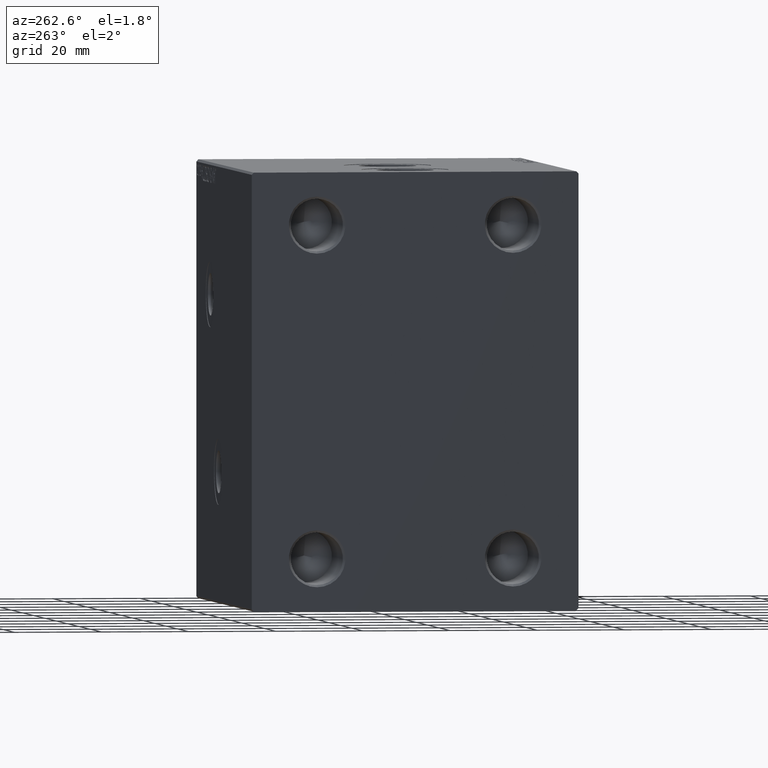
[diagram: clean part render]
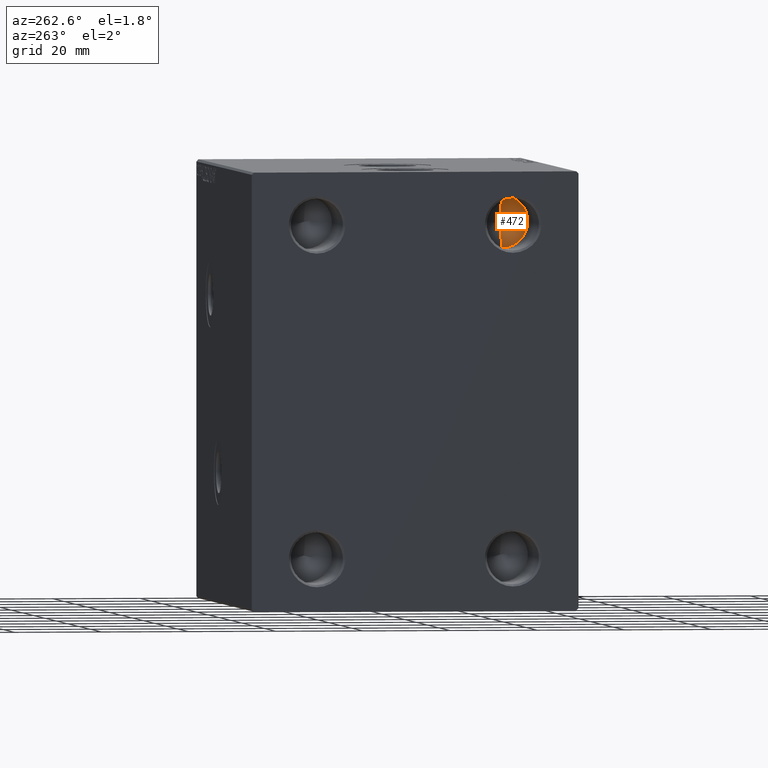
[diagram: same view with one face highlighted and labeled with its STEP entity id]
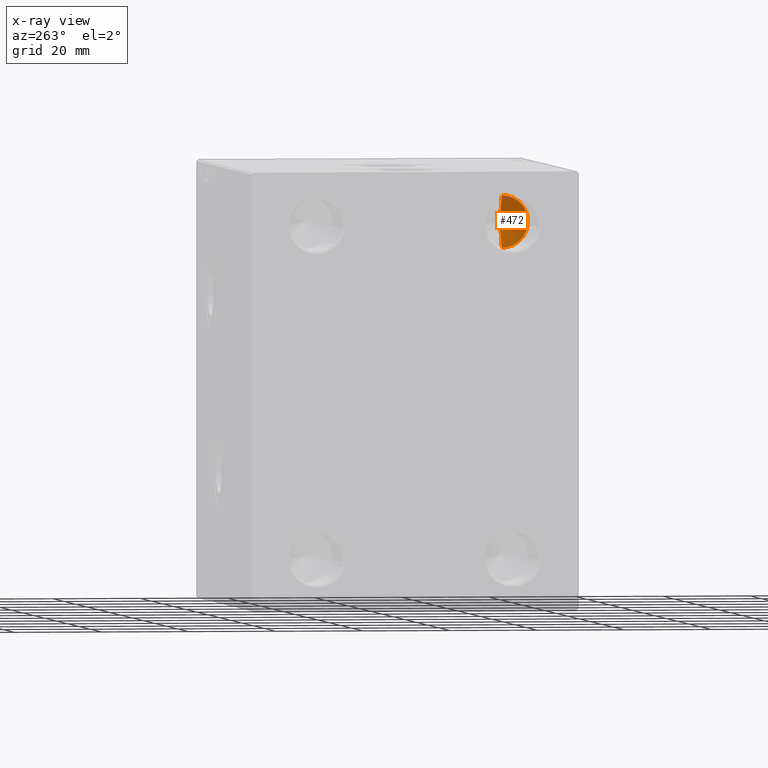
[diagram: x-ray of the same camera — body ghosted, the highlighted face saturated]
A machine part, auxiliary view. The second image highlights one B-rep face of the part: STEP entity #472.
The next image is the same camera in x-ray: the body ghosted, the highlighted face saturated — about 3% of this face is hidden behind the body in this view.
In plain terms, the highlighted conical surface has half-angle 59 deg.
Its self-contained STEP definition (entity closure, byte-faithful):
#472 = ADVANCED_FACE ( 'NONE', ( #16081 ), #36784, .F. ) ;
#2082 = ORIENTED_EDGE ( 'NONE', *, *, #18032, .F. ) ;
#2594 = DIRECTION ( 'NONE',  ( -1.000000000000000000, 0.000000000000000000, 0.000000000000000000 ) ) ;
#3022 = LINE ( 'NONE', #40566, #15055 ) ;
#5649 = CARTESIAN_POINT ( 'NONE',  ( 78.00000000000000000, -22.50000000000000711, -32.00000000000000000 ) ) ;
#5864 = VECTOR ( 'NONE', #26794, 1000.000000000000000 ) ;
#10205 = VERTEX_POINT ( 'NONE', #43027 ) ;
#11731 = CARTESIAN_POINT ( 'NONE',  ( 74.39483628583464281, -22.50000000000001421, -38.00000000000000000 ) ) ;
#11942 = EDGE_CURVE ( 'NONE', #21345, #10205, #3022, .T. ) ;
#13067 = CARTESIAN_POINT ( 'NONE',  ( 78.00000000000000000, -22.50000000000000711, -38.00000000000000000 ) ) ;
#15055 = VECTOR ( 'NONE', #30987, 1000.000000000000000 ) ;
#15856 = CARTESIAN_POINT ( 'NONE',  ( 78.00000000000000000, -22.50000000000000711, -32.00000000000000000 ) ) ;
#16081 = FACE_OUTER_BOUND ( 'NONE', #36060, .T. ) ;
#18032 = EDGE_CURVE ( 'NONE', #10205, #31277, #38336, .T. ) ;
#21345 = VERTEX_POINT ( 'NONE', #11731 ) ;
#23545 = DIRECTION ( 'NONE',  ( 1.000000000000000000, -0.000000000000000000, -0.000000000000000000 ) ) ;
#25947 = EDGE_CURVE ( 'NONE', #21345, #31277, #37465, .T. ) ;
#26794 = DIRECTION ( 'NONE',  ( 0.5150380749100547106, 0.000000000000000000, 0.8571673007021120005 ) ) ;
#26993 = ORIENTED_EDGE ( 'NONE', *, *, #11942, .F. ) ;
#27192 = DIRECTION ( 'NONE',  ( 0.000000000000000000, 0.000000000000000000, 1.000000000000000000 ) ) ;
#30987 = DIRECTION ( 'NONE',  ( 0.5150380749100547106, -1.049727191138618326E-16, -0.8571673007021120005 ) ) ;
#31008 = DIRECTION ( 'NONE',  ( 0.000000000000000000, 0.000000000000000000, 1.000000000000000000 ) ) ;
#31277 = VERTEX_POINT ( 'NONE', #15856 ) ;
#36060 = EDGE_LOOP ( 'NONE', ( #26993, #41778, #2082 ) ) ;
#36784 = CONICAL_SURFACE ( 'NONE', #44651, 5.999999999999998224, 1.029744258676653867 ) ;
#36906 = AXIS2_PLACEMENT_3D ( 'NONE', #13067, #2594, #31008 ) ;
#37465 = LINE ( 'NONE', #5649, #5864 ) ;
#38336 = CIRCLE ( 'NONE', #36906, 5.999999999999998224 ) ;
#40566 = CARTESIAN_POINT ( 'NONE',  ( 78.00000000000000000, -22.50000000000000711, -44.00000000000000000 ) ) ;
#40630 = CARTESIAN_POINT ( 'NONE',  ( 78.00000000000000000, -22.50000000000000711, -38.00000000000000000 ) ) ;
#41778 = ORIENTED_EDGE ( 'NONE', *, *, #25947, .T. ) ;
#43027 = CARTESIAN_POINT ( 'NONE',  ( 78.00000000000000000, -22.50000000000000711, -44.00000000000000000 ) ) ;
#44651 = AXIS2_PLACEMENT_3D ( 'NONE', #40630, #23545, #27192 ) ;